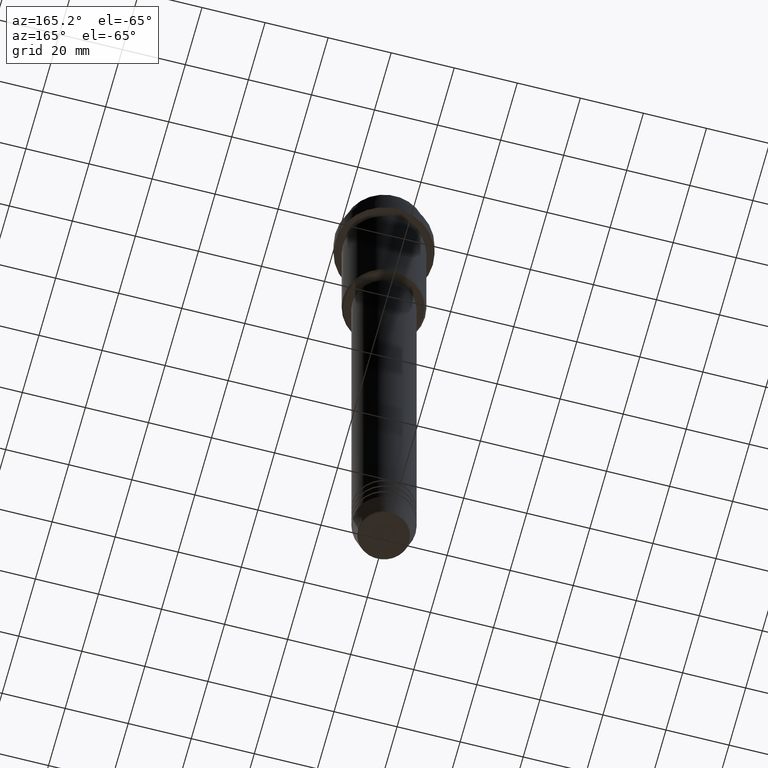
[diagram: clean part render]
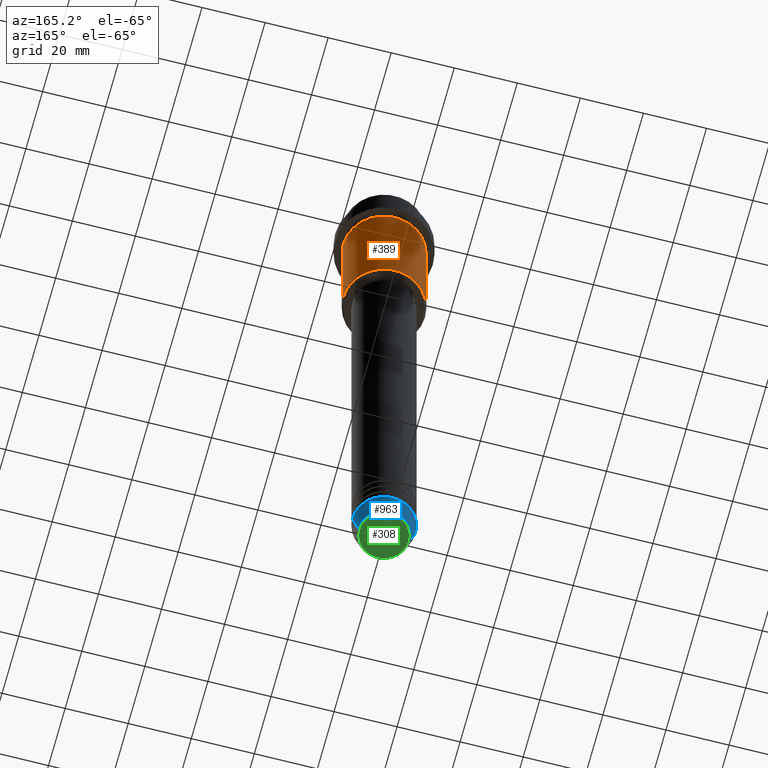
[diagram: same view with three faces highlighted in distinct colors, each labeled with its STEP entity id]
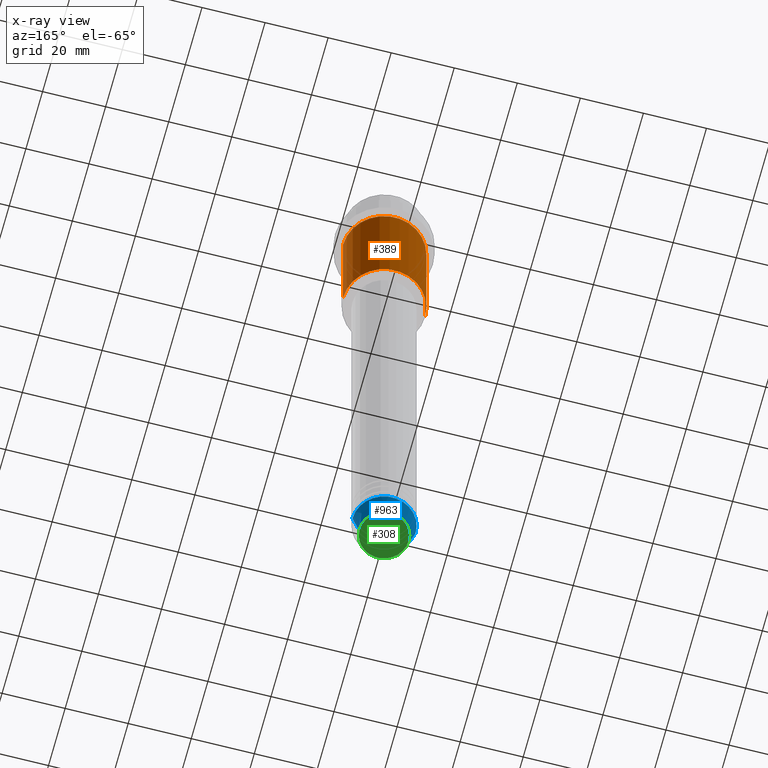
[diagram: x-ray of the same camera — body ghosted, the three highlighted faces saturated]
A machine part, auxiliary view with three faces highlighted in distinct colors.
The next image is the same camera in x-ray (body ghosted, the three faces saturated) — at least one of them is partly hidden behind the body in this view.
Their STEP definitions:

[orange] entity #389 — the highlighted cylindrical surface (partial cylindrical patch) has radius 13 mm, axis along (-0, -0, 1).
#24 = EDGE_CURVE ( 'NONE', #1273, #68, #181, .T. ) ;
#47 = DIRECTION ( 'NONE',  ( -0.000000000000000000, -0.000000000000000000, 1.000000000000000000 ) ) ;
#55 = FACE_OUTER_BOUND ( 'NONE', #1384, .T. ) ;
#68 = VERTEX_POINT ( 'NONE', #608 ) ;
#72 = CARTESIAN_POINT ( 'NONE',  ( 0.000000000000000000, 0.000000000000000000, 0.000000000000000000 ) ) ;
#96 = LINE ( 'NONE', #636, #994 ) ;
#181 = LINE ( 'NONE', #1234, #1235 ) ;
#244 = EDGE_CURVE ( 'NONE', #862, #1273, #258, .T. ) ;
#258 = CIRCLE ( 'NONE', #668, 13.00000000000000000 ) ;
#294 = DIRECTION ( 'NONE',  ( -1.000000000000000000, 0.000000000000000000, 0.000000000000000000 ) ) ;
#300 = DIRECTION ( 'NONE',  ( -0.000000000000000000, -0.000000000000000000, 1.000000000000000000 ) ) ;
#389 = ADVANCED_FACE ( 'NONE', ( #55 ), #613, .T. ) ;
#472 = EDGE_CURVE ( 'NONE', #870, #68, #1032, .T. ) ;
#504 = ORIENTED_EDGE ( 'NONE', *, *, #573, .F. ) ;
#556 = ORIENTED_EDGE ( 'NONE', *, *, #244, .T. ) ;
#573 = EDGE_CURVE ( 'NONE', #862, #870, #96, .T. ) ;
#581 = DIRECTION ( 'NONE',  ( -0.000000000000000000, -0.000000000000000000, 1.000000000000000000 ) ) ;
#608 = CARTESIAN_POINT ( 'NONE',  ( -13.00000000000000000, 1.592040838891559095E-15, -16.00000000000000000 ) ) ;
#613 = CYLINDRICAL_SURFACE ( 'NONE', #802, 13.00000000000000000 ) ;
#636 = CARTESIAN_POINT ( 'NONE',  ( 13.00000000000000000, 0.000000000000000000, 0.000000000000000000 ) ) ;
#668 = AXIS2_PLACEMENT_3D ( 'NONE', #930, #1371, #294 ) ;
#771 = DIRECTION ( 'NONE',  ( 1.000000000000000000, 0.000000000000000000, 0.000000000000000000 ) ) ;
#802 = AXIS2_PLACEMENT_3D ( 'NONE', #72, #47, #817 ) ;
#815 = ORIENTED_EDGE ( 'NONE', *, *, #24, .T. ) ;
#817 = DIRECTION ( 'NONE',  ( 1.000000000000000000, 0.000000000000000000, 0.000000000000000000 ) ) ;
#862 = VERTEX_POINT ( 'NONE', #1128 ) ;
#870 = VERTEX_POINT ( 'NONE', #902 ) ;
#902 = CARTESIAN_POINT ( 'NONE',  ( 13.00000000000000000, 0.000000000000000000, -16.00000000000000000 ) ) ;
#928 = ORIENTED_EDGE ( 'NONE', *, *, #472, .F. ) ;
#930 = CARTESIAN_POINT ( 'NONE',  ( 0.000000000000000000, 0.000000000000000000, -54.50000000000002132 ) ) ;
#994 = VECTOR ( 'NONE', #300, 1000.000000000000000 ) ;
#1032 = CIRCLE ( 'NONE', #1198, 13.00000000000000000 ) ;
#1128 = CARTESIAN_POINT ( 'NONE',  ( 13.00000000000000000, 0.000000000000000000, -54.50000000000002132 ) ) ;
#1150 = CARTESIAN_POINT ( 'NONE',  ( 0.000000000000000000, 0.000000000000000000, -16.00000000000000000 ) ) ;
#1198 = AXIS2_PLACEMENT_3D ( 'NONE', #1150, #1275, #771 ) ;
#1234 = CARTESIAN_POINT ( 'NONE',  ( -13.00000000000000000, 1.592040838891559095E-15, 0.000000000000000000 ) ) ;
#1235 = VECTOR ( 'NONE', #581, 1000.000000000000000 ) ;
#1273 = VERTEX_POINT ( 'NONE', #1347 ) ;
#1275 = DIRECTION ( 'NONE',  ( -0.000000000000000000, -0.000000000000000000, 1.000000000000000000 ) ) ;
#1347 = CARTESIAN_POINT ( 'NONE',  ( -13.00000000000000000, 1.592040838891559095E-15, -54.50000000000002132 ) ) ;
#1371 = DIRECTION ( 'NONE',  ( -0.000000000000000000, -0.000000000000000000, 1.000000000000000000 ) ) ;
#1384 = EDGE_LOOP ( 'NONE', ( #556, #815, #928, #504 ) ) ;

[blue] entity #963 — the highlighted conical surface has half-angle 15 deg.
#34 = LINE ( 'NONE', #579, #766 ) ;
#109 = CARTESIAN_POINT ( 'NONE',  ( -10.00000000000000000, 1.224646799147353256E-15, -213.0000000000000284 ) ) ;
#112 = EDGE_LOOP ( 'NONE', ( #1160, #1363, #404, #371 ) ) ;
#114 = CARTESIAN_POINT ( 'NONE',  ( 10.00000000000000000, 0.000000000000000000, -213.0000000000000284 ) ) ;
#158 = AXIS2_PLACEMENT_3D ( 'NONE', #1081, #434, #418 ) ;
#169 = CARTESIAN_POINT ( 'NONE',  ( -8.223655072137189492, 1.115877042642911856E-15, -219.6294095225512706 ) ) ;
#175 = EDGE_CURVE ( 'NONE', #1079, #1181, #1153, .T. ) ;
#238 = VERTEX_POINT ( 'NONE', #169 ) ;
#286 = VERTEX_POINT ( 'NONE', #109 ) ;
#371 = ORIENTED_EDGE ( 'NONE', *, *, #175, .F. ) ;
#404 = ORIENTED_EDGE ( 'NONE', *, *, #583, .F. ) ;
#418 = DIRECTION ( 'NONE',  ( 1.000000000000000000, 0.000000000000000000, 0.000000000000000000 ) ) ;
#434 = DIRECTION ( 'NONE',  ( -0.000000000000000000, -0.000000000000000000, 1.000000000000000000 ) ) ;
#448 = CIRCLE ( 'NONE', #1331, 10.00000000000000000 ) ;
#484 = AXIS2_PLACEMENT_3D ( 'NONE', #605, #526, #1276 ) ;
#508 = CIRCLE ( 'NONE', #158, 8.223655072137189492 ) ;
#512 = CARTESIAN_POINT ( 'NONE',  ( 8.223655072137189492, 0.000000000000000000, -219.6294095225512706 ) ) ;
#516 = EDGE_CURVE ( 'NONE', #1079, #238, #508, .T. ) ;
#526 = DIRECTION ( 'NONE',  ( -0.000000000000000000, -0.000000000000000000, 1.000000000000000000 ) ) ;
#537 = DIRECTION ( 'NONE',  ( -0.000000000000000000, -0.000000000000000000, 1.000000000000000000 ) ) ;
#579 = CARTESIAN_POINT ( 'NONE',  ( -10.00000000000000000, 1.224646799147353256E-15, -213.0000000000000284 ) ) ;
#583 = EDGE_CURVE ( 'NONE', #1181, #286, #448, .T. ) ;
#605 = CARTESIAN_POINT ( 'NONE',  ( 0.000000000000000000, 0.000000000000000000, -213.0000000000000284 ) ) ;
#741 = CONICAL_SURFACE ( 'NONE', #484, 10.00000000000000000, 0.2617993877991502405 ) ;
#766 = VECTOR ( 'NONE', #1020, 1000.000000000000114 ) ;
#809 = DIRECTION ( 'NONE',  ( 0.2588190451025214611, 0.000000000000000000, 0.9659258262890679791 ) ) ;
#940 = CARTESIAN_POINT ( 'NONE',  ( 0.000000000000000000, 0.000000000000000000, -213.0000000000000284 ) ) ;
#963 = ADVANCED_FACE ( 'NONE', ( #1188 ), #741, .T. ) ;
#972 = DIRECTION ( 'NONE',  ( 1.000000000000000000, 0.000000000000000000, 0.000000000000000000 ) ) ;
#1020 = DIRECTION ( 'NONE',  ( -0.2588190451025214611, 3.169619151431774186E-17, 0.9659258262890679791 ) ) ;
#1050 = CARTESIAN_POINT ( 'NONE',  ( 10.00000000000000000, 0.000000000000000000, -213.0000000000000284 ) ) ;
#1079 = VERTEX_POINT ( 'NONE', #512 ) ;
#1081 = CARTESIAN_POINT ( 'NONE',  ( 0.000000000000000000, 0.000000000000000000, -219.6294095225512706 ) ) ;
#1153 = LINE ( 'NONE', #1050, #1216 ) ;
#1160 = ORIENTED_EDGE ( 'NONE', *, *, #516, .T. ) ;
#1181 = VERTEX_POINT ( 'NONE', #114 ) ;
#1188 = FACE_OUTER_BOUND ( 'NONE', #112, .T. ) ;
#1216 = VECTOR ( 'NONE', #809, 1000.000000000000114 ) ;
#1276 = DIRECTION ( 'NONE',  ( 1.000000000000000000, 0.000000000000000000, 0.000000000000000000 ) ) ;
#1277 = EDGE_CURVE ( 'NONE', #238, #286, #34, .T. ) ;
#1331 = AXIS2_PLACEMENT_3D ( 'NONE', #940, #537, #972 ) ;
#1363 = ORIENTED_EDGE ( 'NONE', *, *, #1277, .T. ) ;

[green] entity #308 — the highlighted planar face has unit normal (0, -0, 1).
#6 = FACE_OUTER_BOUND ( 'NONE', #272, .T. ) ;
#82 = ORIENTED_EDGE ( 'NONE', *, *, #1083, .T. ) ;
#141 = CARTESIAN_POINT ( 'NONE',  ( -7.740692158992656502, 9.775343368540041107E-16, -220.0000000000000284 ) ) ;
#228 = CARTESIAN_POINT ( 'NONE',  ( 0.000000000000000000, 0.000000000000000000, -220.0000000000000284 ) ) ;
#272 = EDGE_LOOP ( 'NONE', ( #82, #437 ) ) ;
#308 = ADVANCED_FACE ( 'NONE', ( #6 ), #444, .F. ) ;
#330 = VERTEX_POINT ( 'NONE', #141 ) ;
#399 = AXIS2_PLACEMENT_3D ( 'NONE', #228, #784, #669 ) ;
#437 = ORIENTED_EDGE ( 'NONE', *, *, #698, .T. ) ;
#444 = PLANE ( 'NONE',  #622 ) ;
#590 = CIRCLE ( 'NONE', #399, 7.740692158992656502 ) ;
#622 = AXIS2_PLACEMENT_3D ( 'NONE', #881, #1013, #1372 ) ;
#669 = DIRECTION ( 'NONE',  ( 1.000000000000000000, 0.000000000000000000, 0.000000000000000000 ) ) ;
#698 = EDGE_CURVE ( 'NONE', #330, #1360, #590, .T. ) ;
#784 = DIRECTION ( 'NONE',  ( 0.000000000000000000, 0.000000000000000000, -1.000000000000000000 ) ) ;
#849 = DIRECTION ( 'NONE',  ( 0.000000000000000000, 0.000000000000000000, -1.000000000000000000 ) ) ;
#857 = AXIS2_PLACEMENT_3D ( 'NONE', #951, #849, #1388 ) ;
#881 = CARTESIAN_POINT ( 'NONE',  ( 0.000000000000000000, 0.000000000000000000, -220.0000000000000284 ) ) ;
#917 = CARTESIAN_POINT ( 'NONE',  ( 7.740692158992656502, 0.000000000000000000, -220.0000000000000284 ) ) ;
#951 = CARTESIAN_POINT ( 'NONE',  ( 0.000000000000000000, 0.000000000000000000, -220.0000000000000284 ) ) ;
#1013 = DIRECTION ( 'NONE',  ( 0.000000000000000000, -0.000000000000000000, 1.000000000000000000 ) ) ;
#1083 = EDGE_CURVE ( 'NONE', #1360, #330, #1241, .T. ) ;
#1241 = CIRCLE ( 'NONE', #857, 7.740692158992656502 ) ;
#1360 = VERTEX_POINT ( 'NONE', #917 ) ;
#1372 = DIRECTION ( 'NONE',  ( 1.000000000000000000, 0.000000000000000000, 0.000000000000000000 ) ) ;
#1388 = DIRECTION ( 'NONE',  ( 1.000000000000000000, 0.000000000000000000, 0.000000000000000000 ) ) ;